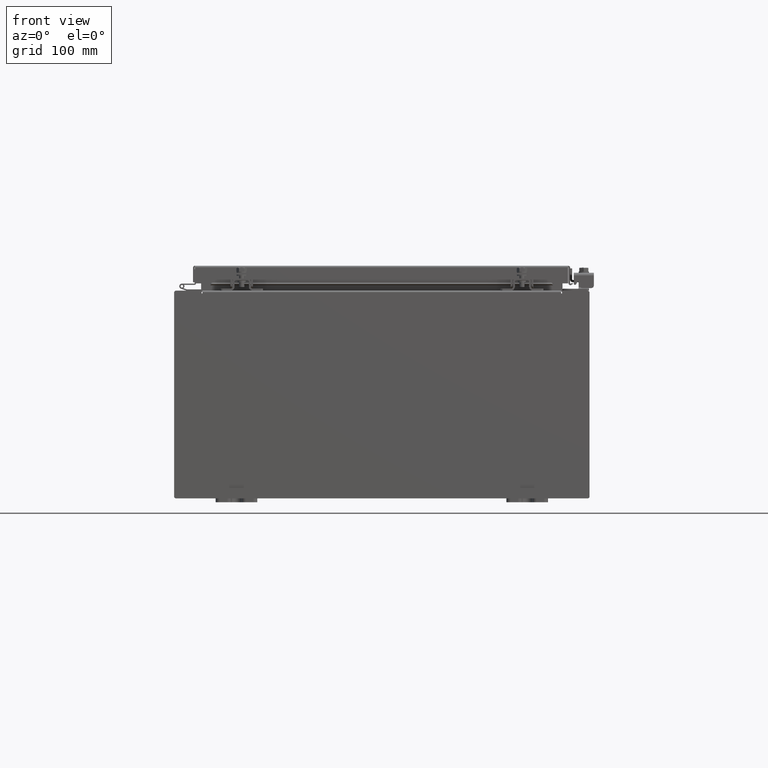
[diagram: clean part render]
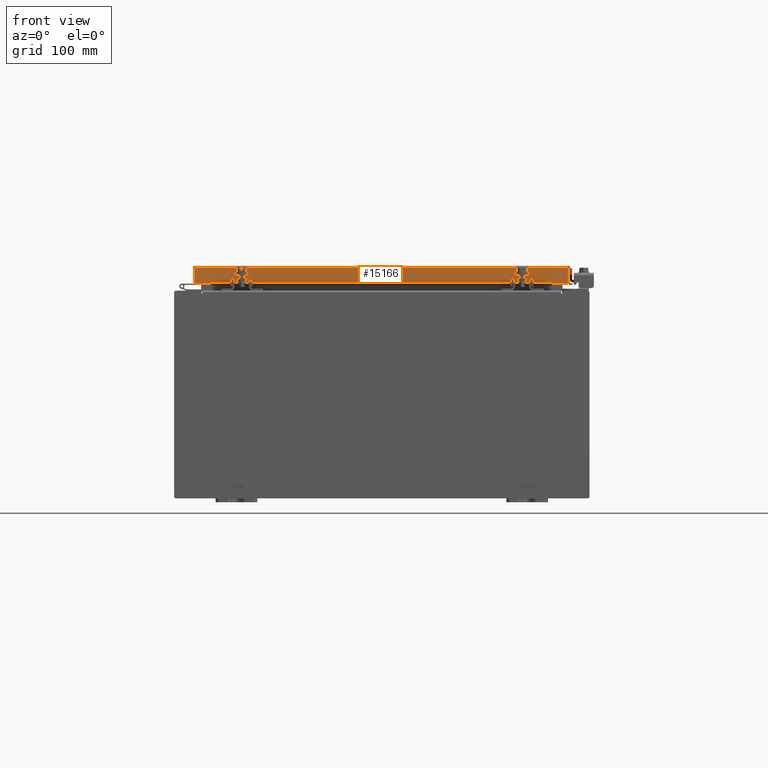
[diagram: same view with one face highlighted and labeled with its STEP entity id]
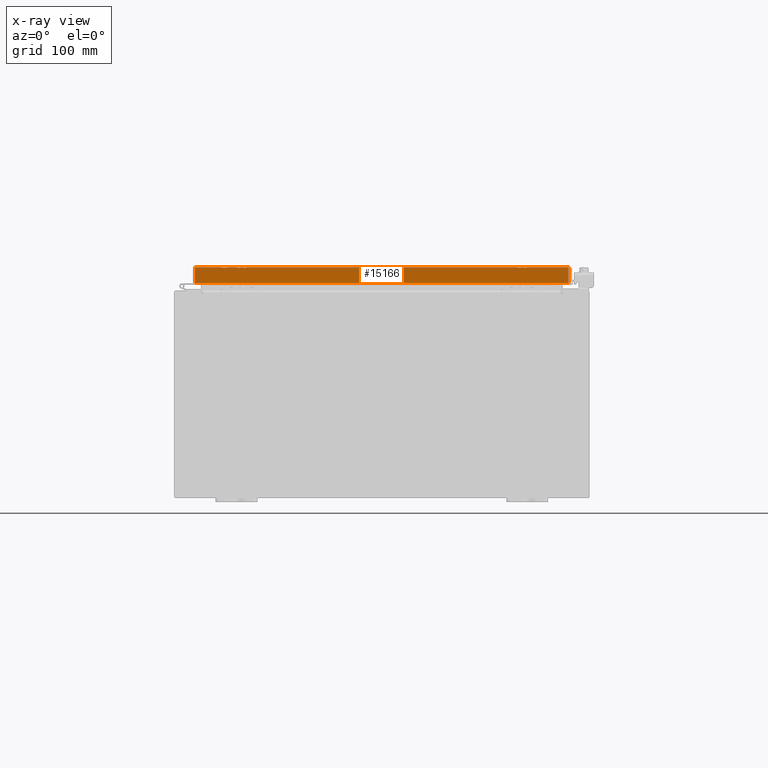
[diagram: x-ray of the same camera — body ghosted, the highlighted face saturated]
A machine part, front view. The second image highlights one B-rep face of the part: STEP entity #15166.
The next image is the same camera in x-ray: the body ghosted, the highlighted face saturated — about 0% of this face is hidden behind the body in this view.
In plain terms, the highlighted planar face has unit normal (-0, 1, -0).
Its self-contained STEP definition (entity closure, byte-faithful):
#580 = CARTESIAN_POINT ( 'NONE',  ( 9.077999999999999400, -11.09400000000000300, -0.8499999999999996400 ) ) ;
#653 = LINE ( 'NONE', #2291, #10675 ) ;
#1838 = EDGE_CURVE ( 'NONE', #16946, #24298, #18420, .T. ) ;
#2291 = CARTESIAN_POINT ( 'NONE',  ( 9.077999999999999400, -11.09400000000000100, -0.08770000000000007000 ) ) ;
#3813 = EDGE_CURVE ( 'NONE', #31666, #30565, #653, .T. ) ;
#3981 = CARTESIAN_POINT ( 'NONE',  ( 1.335409633915462800E-015, -11.09400000000000100, 3.153347883512815000E-014 ) ) ;
#4114 = VECTOR ( 'NONE', #18994, 39.37007874015748100 ) ;
#4153 = AXIS2_PLACEMENT_3D ( 'NONE', #3981, #10871, #21887 ) ;
#6134 = VECTOR ( 'NONE', #25787, 39.37007874015748100 ) ;
#6636 = PLANE ( 'NONE',  #4153 ) ;
#7619 = ORIENTED_EDGE ( 'NONE', *, *, #28055, .F. ) ;
#8273 = DIRECTION ( 'NONE',  ( -1.000000000000000000, -1.203722403024570700E-016, 1.203722403024570700E-016 ) ) ;
#8653 = CARTESIAN_POINT ( 'NONE',  ( 9.077999999999999400, -11.09400000000000300, -0.8499999999999996400 ) ) ;
#10241 = CARTESIAN_POINT ( 'NONE',  ( -8.989157864376267100, -11.09400000000000100, 3.153347883512815000E-014 ) ) ;
#10460 = CARTESIAN_POINT ( 'NONE',  ( -8.989157864376267100, -11.09400000000000100, -0.08769999999999789100 ) ) ;
#10675 = VECTOR ( 'NONE', #32361, 39.37007874015748100 ) ;
#10739 = EDGE_CURVE ( 'NONE', #16727, #16946, #16475, .T. ) ;
#10871 = DIRECTION ( 'NONE',  ( -1.203722403024574200E-016, 1.000000000000000000, -2.818880942772360100E-015 ) ) ;
#11314 = DIRECTION ( 'NONE',  ( 0.0000000000000000000, -2.818880942772360100E-015, -1.000000000000000000 ) ) ;
#14830 = CARTESIAN_POINT ( 'NONE',  ( -8.239157864376267100, -11.09399999999999900, -0.8500000000000017500 ) ) ;
#14940 = VECTOR ( 'NONE', #11314, 39.37007874015748100 ) ;
#15166 = ADVANCED_FACE ( 'NONE', ( #18284 ), #6636, .F. ) ;
#16067 = VECTOR ( 'NONE', #8273, 39.37007874015748100 ) ;
#16475 = LINE ( 'NONE', #8653, #16067 ) ;
#16727 = VERTEX_POINT ( 'NONE', #20763 ) ;
#16734 = CARTESIAN_POINT ( 'NONE',  ( 8.239157864376267100, -11.09399999999999900, -0.8500000000000017500 ) ) ;
#16946 = VERTEX_POINT ( 'NONE', #16734 ) ;
#17574 = ORIENTED_EDGE ( 'NONE', *, *, #28099, .T. ) ;
#18284 = FACE_OUTER_BOUND ( 'NONE', #21081, .T. ) ;
#18420 = LINE ( 'NONE', #19160, #4114 ) ;
#18493 = EDGE_CURVE ( 'NONE', #30565, #16727, #21773, .T. ) ;
#18994 = DIRECTION ( 'NONE',  ( -1.000000000000000000, 0.0000000000000000000, 0.0000000000000000000 ) ) ;
#19160 = CARTESIAN_POINT ( 'NONE',  ( 8.239157864376267100, -11.09399999999999900, -0.8500000000000017500 ) ) ;
#19222 = ORIENTED_EDGE ( 'NONE', *, *, #18493, .F. ) ;
#19299 = ORIENTED_EDGE ( 'NONE', *, *, #3813, .F. ) ;
#20763 = CARTESIAN_POINT ( 'NONE',  ( 8.989157864376267100, -11.09400000000000300, -0.8499999999999996400 ) ) ;
#20981 = VECTOR ( 'NONE', #32415, 39.37007874015748100 ) ;
#21081 = EDGE_LOOP ( 'NONE', ( #19299, #17574, #7619, #30222, #27543, #19222 ) ) ;
#21365 = CARTESIAN_POINT ( 'NONE',  ( -8.989157864376267100, -11.09400000000000700, -0.8499999999999975400 ) ) ;
#21773 = LINE ( 'NONE', #31842, #20981 ) ;
#21887 = DIRECTION ( 'NONE',  ( 0.0000000000000000000, 2.818880942772360100E-015, 1.000000000000000000 ) ) ;
#24298 = VERTEX_POINT ( 'NONE', #14830 ) ;
#25787 = DIRECTION ( 'NONE',  ( -1.000000000000000000, -1.203722403024570700E-016, 1.203722403024570700E-016 ) ) ;
#26038 = LINE ( 'NONE', #10241, #14940 ) ;
#27409 = VERTEX_POINT ( 'NONE', #21365 ) ;
#27543 = ORIENTED_EDGE ( 'NONE', *, *, #10739, .F. ) ;
#28055 = EDGE_CURVE ( 'NONE', #24298, #27409, #30306, .T. ) ;
#28099 = EDGE_CURVE ( 'NONE', #31666, #27409, #26038, .T. ) ;
#30222 = ORIENTED_EDGE ( 'NONE', *, *, #1838, .F. ) ;
#30306 = LINE ( 'NONE', #580, #6134 ) ;
#30565 = VERTEX_POINT ( 'NONE', #31695 ) ;
#31666 = VERTEX_POINT ( 'NONE', #10460 ) ;
#31695 = CARTESIAN_POINT ( 'NONE',  ( 8.989157864376267100, -11.09400000000000100, -0.08769999999999897300 ) ) ;
#31842 = CARTESIAN_POINT ( 'NONE',  ( 8.989157864376267100, -11.09400000000000100, -0.07469999999999978000 ) ) ;
#32361 = DIRECTION ( 'NONE',  ( 1.000000000000000000, 1.203722403024570700E-016, -1.203722403024570700E-016 ) ) ;
#32415 = DIRECTION ( 'NONE',  ( -0.0000000000000000000, -2.818880942772360100E-015, -1.000000000000000000 ) ) ;